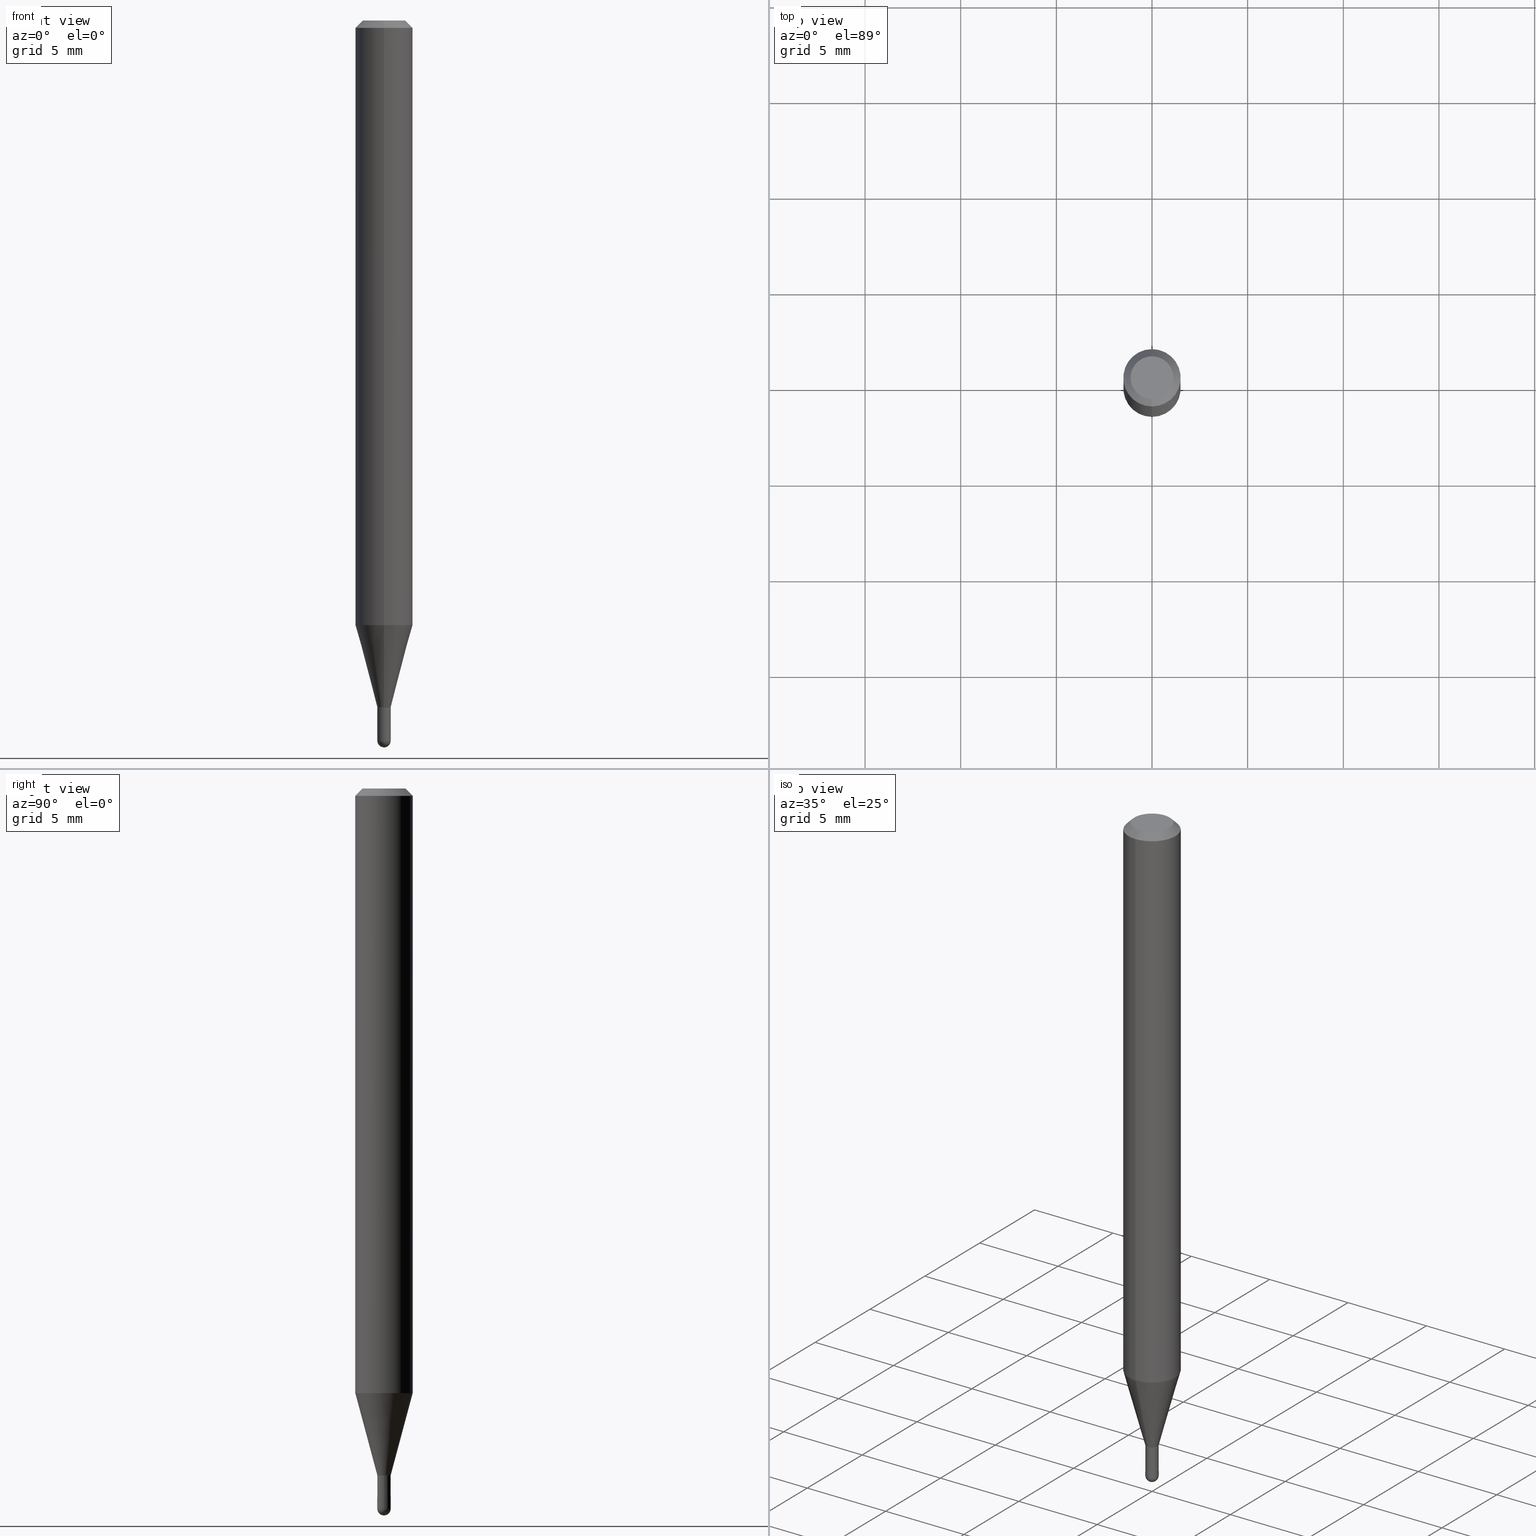
[diagram: canonical four-view strip — front | top / right | iso, engineering-drawing reading convention]
A machine part, canonical four-view strip (front | top / right | iso — engineering-drawing reading convention). The complete STEP part file that produces these views, byte-faithful:
ISO-10303-21;
HEADER;
FILE_DESCRIPTION (( 'STEP AP203' ),
    '1' );
FILE_NAME ('05014.STEP',
    '2024-03-08T20:46:24',
    ( '' ),
    ( '' ),
    'SwSTEP 2.0',
    'SolidWorks 2023',
    '' );
FILE_SCHEMA (( 'CONFIG_CONTROL_DESIGN' ));
ENDSEC;

DATA;
#1 = ADVANCED_FACE ( 'NONE', ( #237 ), #261, .T. ) ;
#2 = DIRECTION ( 'NONE',  ( 2.445466752382438032E-29, -3.491484280005505170E-15, -1.000000000000000000 ) ) ;
#3 = AXIS2_PLACEMENT_3D ( 'NONE', #355, #470, #110 ) ;
#4 = VERTEX_POINT ( 'NONE', #184 ) ;
#5 = DIRECTION ( 'NONE',  ( -2.445466752382438032E-29, 3.491484280005505170E-15, 1.000000000000000000 ) ) ;
#6 = DIRECTION ( 'NONE',  ( -6.982962677686265133E-15, -1.000000000000000000, 0.000000000000000000 ) ) ;
#7 = EDGE_CURVE ( 'NONE', #57, #500, #402, .T. ) ;
#8 = ORIENTED_EDGE ( 'NONE', *, *, #499, .T. ) ;
#9 =( NAMED_UNIT ( * ) PLANE_ANGLE_UNIT ( ) SI_UNIT ( $, .RADIAN. ) );
#10 = SECURITY_CLASSIFICATION_LEVEL ( 'unclassified' ) ;
#11 = DIRECTION ( 'NONE',  ( -6.982962677686265922E-15, -1.000000000000000000, 3.505890868245046092E-15 ) ) ;
#12 = CC_DESIGN_PERSON_AND_ORGANIZATION_ASSIGNMENT ( #274, #201, ( #183 ) ) ;
#13 = APPROVAL_ROLE ( '' ) ;
#14 = SPHERICAL_SURFACE ( 'NONE', #171, 0.01379999999999999977 ) ;
#15 = ORIENTED_EDGE ( 'NONE', *, *, #7, .F. ) ;
#16 = CARTESIAN_POINT ( 'NONE',  ( 1.968650324445262626E-45, -2.810715645155272139E-31, -8.050202778374932957E-17 ) ) ;
#17 = CARTESIAN_POINT ( 'NONE',  ( 0.000000000000000000, 0.000000000000000000, 0.000000000000000000 ) ) ;
#18 = EDGE_CURVE ( 'NONE', #227, #203, #228, .T. ) ;
#19 = DIRECTION ( 'NONE',  ( 6.982962677686265922E-15, 1.000000000000000000, -3.505890868245046092E-15 ) ) ;
#20 = AXIS2_PLACEMENT_3D ( 'NONE', #24, #65, #74 ) ;
#21 = VECTOR ( 'NONE', #376, 39.37007874015748143 ) ;
#22 = CARTESIAN_POINT ( 'NONE',  ( 9.450218385612788188E-17, 0.01329999999999506577, -1.413400000000000212 ) ) ;
#23 = CARTESIAN_POINT ( 'NONE',  ( 0.000000000000000000, 0.000000000000000000, 0.000000000000000000 ) ) ;
#24 = CARTESIAN_POINT ( 'NONE',  ( 3.624918411408227122E-29, -5.175422788567193795E-15, -1.482299999999999729 ) ) ;
#25 = CARTESIAN_POINT ( 'NONE',  ( 3.455689067791622925E-29, -4.933816436075779894E-15, -1.413100000000000023 ) ) ;
#26 = FACE_OUTER_BOUND ( 'NONE', #464, .T. ) ;
#27 = ORIENTED_EDGE ( 'NONE', *, *, #450, .T. ) ;
#28 = CONICAL_SURFACE ( 'NONE', #338, 0.01330000000000000106, 0.7853981633974739252 ) ;
#29 = AXIS2_PLACEMENT_3D ( 'NONE', #461, #177, #295 ) ;
#30 = FACE_OUTER_BOUND ( 'NONE', #509, .T. ) ;
#31 = APPLICATION_CONTEXT ( 'configuration controlled 3d designs of mechanical parts and assemblies' ) ;
#32 = CONICAL_SURFACE ( 'NONE', #112, 0.01379999999999992344, 0.2617993877991576790 ) ;
#33 = VECTOR ( 'NONE', #249, 39.37007874015748143 ) ;
#34 = DIRECTION ( 'NONE',  ( -2.445468806185136597E-29, 3.491481338843145583E-15, 1.000000000000000000 ) ) ;
#35 = EDGE_CURVE ( 'NONE', #454, #475, #309, .T. ) ;
#36 = ORIENTED_EDGE ( 'NONE', *, *, #144, .F. ) ;
#37 = CARTESIAN_POINT ( 'NONE',  ( 3.623738281929160025E-29, -5.177112801150018502E-15, -1.482299999999999951 ) ) ;
#38 = DIRECTION ( 'NONE',  ( -6.982962677686265922E-15, -1.000000000000000000, 0.000000000000000000 ) ) ;
#39 = LINE ( 'NONE', #398, #329 ) ;
#40 = CARTESIAN_POINT ( 'NONE',  ( 0.000000000000000000, 0.000000000000000000, 0.000000000000000000 ) ) ;
#41 = AXIS2_PLACEMENT_3D ( 'NONE', #354, #198, #304 ) ;
#42 = CIRCLE ( 'NONE', #83, 0.01379999999999992344 ) ;
#43 = ORIENTED_EDGE ( 'NONE', *, *, #35, .T. ) ;
#44 = DATE_AND_TIME ( #388, #315 ) ;
#45 = EDGE_CURVE ( 'NONE', #500, #199, #465, .T. ) ;
#46 = CARTESIAN_POINT ( 'NONE',  ( 9.805489753492943367E-17, 0.01379999999999521887, -1.412900000000000045 ) ) ;
#47 = ORIENTED_EDGE ( 'NONE', *, *, #476, .F. ) ;
#48 = APPROVAL ( #324, 'UNSPECIFIED' ) ;
#49 = DIRECTION ( 'NONE',  ( -2.445466752382438032E-29, 3.491484280005505170E-15, 1.000000000000000000 ) ) ;
#50 = EDGE_LOOP ( 'NONE', ( #409, #223, #312, #109 ) ) ;
#51 = DATE_AND_TIME ( #81, #270 ) ;
#52 = CARTESIAN_POINT ( 'NONE',  ( 0.01379999999999999977, -5.031224609272972078E-15, -1.413399999999999990 ) ) ;
#53 = APPLICATION_PROTOCOL_DEFINITION ( 'international standard', 'config_control_design', 1994, #206 ) ;
#54 = AXIS2_PLACEMENT_3D ( 'NONE', #457, #137, #58 ) ;
#55 = CARTESIAN_POINT ( 'NONE',  ( 3.455689067791622925E-29, -4.933816436075779894E-15, -1.413100000000000023 ) ) ;
#56 = CARTESIAN_POINT ( 'NONE',  ( -4.051124067684085231E-16, -0.05905000000000005383, -0.01499999999999987454 ) ) ;
#57 = VERTEX_POINT ( 'NONE', #190 ) ;
#58 = DIRECTION ( 'NONE',  ( -1.000000000000000000, 6.982962677686265922E-15, -4.876176775795935793E-29 ) ) ;
#59 = VECTOR ( 'NONE', #97, 39.37007874015748143 ) ;
#60 = DIRECTION ( 'NONE',  ( -6.982962677686265922E-15, -1.000000000000000000, 0.000000000000000000 ) ) ;
#61 = EDGE_CURVE ( 'NONE', #271, #510, #307, .T. ) ;
#62 = EDGE_LOOP ( 'NONE', ( #358, #96, #210, #272 ) ) ;
#63 = DIRECTION ( 'NONE',  ( -6.982962677686265922E-15, -1.000000000000000000, 0.000000000000000000 ) ) ;
#64 = CARTESIAN_POINT ( 'NONE',  ( 1.968650324445262626E-45, -2.810715645155272139E-31, -8.050202778374932957E-17 ) ) ;
#65 = DIRECTION ( 'NONE',  ( -2.445468806185136597E-29, 3.491481338843145583E-15, 1.000000000000000000 ) ) ;
#66 = MANIFOLD_SOLID_BREP ( 'Body-Move/Copy2[2]', #189 ) ;
#67 = CARTESIAN_POINT ( 'NONE',  ( 3.456422707817337873E-29, -4.934863881359783185E-15, -1.413400000000000212 ) ) ;
#68 = CC_DESIGN_SECURITY_CLASSIFICATION ( #214, ( #191 ) ) ;
#69 = CARTESIAN_POINT ( 'NONE',  ( 3.624918411408227122E-29, -5.175422788567193795E-15, -1.482299999999999729 ) ) ;
#70 = CARTESIAN_POINT ( 'NONE',  ( -9.636488495203536860E-17, -0.01380000000000485873, -1.413100000000000023 ) ) ;
#71 = ORIENTED_EDGE ( 'NONE', *, *, #61, .T. ) ;
#72 = CIRCLE ( 'NONE', #368, 0.01380000000000019926 ) ;
#73 = ORGANIZATION ( 'UNSPECIFIED', 'UNSPECIFIED', '' ) ;
#74 = DIRECTION ( 'NONE',  ( 1.000000000000000000, -6.982962677686234367E-15, 0.000000000000000000 ) ) ;
#75 = VERTEX_POINT ( 'NONE', #115 ) ;
#76 = VERTEX_POINT ( 'NONE', #433 ) ;
#77 = CARTESIAN_POINT ( 'NONE',  ( 9.627854069552881185E-17, 0.01329999999999506577, -1.413400000000000212 ) ) ;
#78 = PERSON_AND_ORGANIZATION ( #305, #73 ) ;
#79 = LINE ( 'NONE', #240, #327 ) ;
#80 = ORIENTED_EDGE ( 'NONE', *, *, #265, .F. ) ;
#81 = CALENDAR_DATE ( 2024, 8, 3 ) ;
#82 = DIRECTION ( 'NONE',  ( 1.839019923739650802E-15, 0.2588190451025320638, 0.9659258262890650926 ) ) ;
#83 = AXIS2_PLACEMENT_3D ( 'NONE', #25, #187, #139 ) ;
#84 = EDGE_LOOP ( 'NONE', ( #456, #280, #169, #296, #263 ) ) ;
#85 = DIRECTION ( 'NONE',  ( 6.982962677686265922E-15, 1.000000000000000000, -3.505890868245046092E-15 ) ) ;
#86 = ORIENTED_EDGE ( 'NONE', *, *, #486, .F. ) ;
#87 = CALENDAR_DATE ( 2024, 8, 3 ) ;
#88 = DIRECTION ( 'NONE',  ( -2.445466752382438032E-29, 3.491484280005505170E-15, 1.000000000000000000 ) ) ;
#89 = CARTESIAN_POINT ( 'NONE',  ( 3.455199974441146854E-29, -4.933118139219779014E-15, -1.412900000000000045 ) ) ;
#90 = FACE_OUTER_BOUND ( 'NONE', #162, .T. ) ;
#91 = EDGE_CURVE ( 'NONE', #236, #199, #92, .T. ) ;
#92 = CIRCLE ( 'NONE', #129, 0.01379999999999999977 ) ;
#93 = AXIS2_PLACEMENT_3D ( 'NONE', #23, #185, #469 ) ;
#94 = ORIENTED_EDGE ( 'NONE', *, *, #195, .F. ) ;
#95 = EDGE_CURVE ( 'NONE', #4, #158, #434, .T. ) ;
#96 = ORIENTED_EDGE ( 'NONE', *, *, #311, .F. ) ;
#97 = DIRECTION ( 'NONE',  ( -2.445466752382438312E-29, 3.491484280005505565E-15, 1.000000000000000000 ) ) ;
#98 = EDGE_LOOP ( 'NONE', ( #313, #156 ) ) ;
#99 = EDGE_CURVE ( 'NONE', #75, #510, #511, .T. ) ;
#100 = PERSON_AND_ORGANIZATION ( #305, #73 ) ;
#101 = DIRECTION ( 'NONE',  ( -2.445466752382438032E-29, 3.491484280005505170E-15, 1.000000000000000000 ) ) ;
#102 = AXIS2_PLACEMENT_3D ( 'NONE', #40, #133, #128 ) ;
#103 = DIRECTION ( 'NONE',  ( 1.000000000000000000, -6.982962677686234367E-15, 0.000000000000000000 ) ) ;
#104 = CONICAL_SURFACE ( 'NONE', #173, 0.01330000000000000106, 0.7853981633974739252 ) ;
#105 = AXIS2_PLACEMENT_3D ( 'NONE', #37, #204, #361 ) ;
#106 = FACE_OUTER_BOUND ( 'NONE', #482, .T. ) ;
#107 = PRODUCT_RELATED_PRODUCT_CATEGORY ( 'detail', '', ( #349 ) ) ;
#108 = FACE_OUTER_BOUND ( 'NONE', #393, .T. ) ;
#109 = ORIENTED_EDGE ( 'NONE', *, *, #153, .F. ) ;
#110 = DIRECTION ( 'NONE',  ( -6.982962677686265922E-15, -1.000000000000000000, 4.626330217890369336E-15 ) ) ;
#111 = ADVANCED_FACE ( 'NONE', ( #30 ), #28, .T. ) ;
#112 = AXIS2_PLACEMENT_3D ( 'NONE', #161, #5, #365 ) ;
#113 = CIRCLE ( 'NONE', #352, 0.04404999999999999888 ) ;
#114 = ORIENTED_EDGE ( 'NONE', *, *, #504, .F. ) ;
#115 = CARTESIAN_POINT ( 'NONE',  ( 3.599717260347271507E-16, 0.04404999999999999888, -2.343019103179918348E-16 ) ) ;
#116 = ORIENTED_EDGE ( 'NONE', *, *, #481, .F. ) ;
#117 = DIRECTION ( 'NONE',  ( -2.445468806185136597E-29, 3.491481338843145583E-15, 1.000000000000000000 ) ) ;
#118 = ORIENTED_EDGE ( 'NONE', *, *, #351, .F. ) ;
#119 =( LENGTH_UNIT ( ) NAMED_UNIT ( * ) SI_UNIT ( $, .METRE. ) );
#120 = DIRECTION ( 'NONE',  ( -6.982962677686265922E-15, -1.000000000000000000, 0.000000000000000000 ) ) ;
#121 = FACE_OUTER_BOUND ( 'NONE', #84, .T. ) ;
#122 = ORIENTED_EDGE ( 'NONE', *, *, #404, .F. ) ;
#123 = PERSON_AND_ORGANIZATION_ROLE ( 'classification_officer' ) ;
#124 = CARTESIAN_POINT ( 'NONE',  ( 9.805489753489424308E-17, 0.01380000000000006048, -4.818248306407617745E-17 ) ) ;
#125 = ADVANCED_FACE ( 'NONE', ( #200 ), #251, .T. ) ;
#126 = ORIENTED_EDGE ( 'NONE', *, *, #476, .T. ) ;
#127 = CALENDAR_DATE ( 2024, 8, 3 ) ;
#128 = DIRECTION ( 'NONE',  ( 1.000000000000000000, -6.982962677686267499E-15, 4.876176775795936353E-29 ) ) ;
#129 = AXIS2_PLACEMENT_3D ( 'NONE', #186, #264, #503 ) ;
#130 = CIRCLE ( 'NONE', #283, 0.01379999999999999977 ) ;
#131 = EDGE_LOOP ( 'NONE', ( #344, #239 ) ) ;
#132 = COORDINATED_UNIVERSAL_TIME_OFFSET ( 5, 0, .BEHIND. ) ;
#133 = DIRECTION ( 'NONE',  ( -2.445468806185136597E-29, 3.491481338843145583E-15, 1.000000000000000000 ) ) ;
#134 = CARTESIAN_POINT ( 'NONE',  ( -0.01379999999999999977, -4.957086358909154579E-15, -1.482299999999999729 ) ) ;
#135 = DIRECTION ( 'NONE',  ( -2.445466752382438312E-29, 3.491484280005505565E-15, 1.000000000000000000 ) ) ;
#136 = DIRECTION ( 'NONE',  ( -2.445466752382438032E-29, 3.491484280005505170E-15, 1.000000000000000000 ) ) ;
#137 = DIRECTION ( 'NONE',  ( 2.438088387897960049E-29, -3.491481338843145188E-15, -1.000000000000000000 ) ) ;
#138 = CIRCLE ( 'NONE', #220, 0.05904999999999999832 ) ;
#139 = DIRECTION ( 'NONE',  ( -6.982962677686265922E-15, -1.000000000000000000, 0.000000000000000000 ) ) ;
#140 = FACE_OUTER_BOUND ( 'NONE', #131, .T. ) ;
#141 = ADVANCED_FACE ( 'NONE', ( #165 ), #175, .T. ) ;
#142 = DIRECTION ( 'NONE',  ( 2.445466752382438032E-29, -3.491484280005505170E-15, -1.000000000000000000 ) ) ;
#143 = CARTESIAN_POINT ( 'NONE',  ( 3.456425610662071813E-29, -4.934859724320901926E-15, -1.413399999999999990 ) ) ;
#144 = EDGE_CURVE ( 'NONE', #207, #475, #219, .T. ) ;
#145 = DIRECTION ( 'NONE',  ( -6.982962677686265133E-15, -1.000000000000000000, 3.491484280005504776E-15 ) ) ;
#146 = DIRECTION ( 'NONE',  ( 4.937700262164548042E-15, 0.7071067811865451302, -0.7071067811865499042 ) ) ;
#147 = AXIS2_PLACEMENT_3D ( 'NONE', #17, #148, #453 ) ;
#148 = DIRECTION ( 'NONE',  ( -2.445468806185136597E-29, 3.491481338843145583E-15, 1.000000000000000000 ) ) ;
#149 = ORIENTED_EDGE ( 'NONE', *, *, #351, .T. ) ;
#150 = ADVANCED_FACE ( 'NONE', ( #90 ), #32, .T. ) ;
#151 = AXIS2_PLACEMENT_3D ( 'NONE', #446, #2, #85 ) ;
#152 = DIRECTION ( 'NONE',  ( -2.445468806185136597E-29, 3.491481338843145583E-15, 1.000000000000000000 ) ) ;
#153 = EDGE_CURVE ( 'NONE', #158, #271, #245, .T. ) ;
#154 = CARTESIAN_POINT ( 'NONE',  ( 3.456422707817337873E-29, -4.934863881359783185E-15, -1.413400000000000212 ) ) ;
#155 = ORIENTED_EDGE ( 'NONE', *, *, #499, .F. ) ;
#156 = ORIENTED_EDGE ( 'NONE', *, *, #504, .T. ) ;
#157 = EDGE_LOOP ( 'NONE', ( #94, #8, #462, #400 ) ) ;
#158 = VERTEX_POINT ( 'NONE', #477 ) ;
#159 = CLOSED_SHELL ( 'NONE', ( #164, #231, #390, #1, #322 ) ) ;
#160 = AXIS2_PLACEMENT_3D ( 'NONE', #154, #88, #120 ) ;
#161 = CARTESIAN_POINT ( 'NONE',  ( 3.455689067791622925E-29, -4.933816436075779894E-15, -1.413100000000000023 ) ) ;
#162 = EDGE_LOOP ( 'NONE', ( #419, #490, #298, #116 ) ) ;
#163 = COORDINATED_UNIVERSAL_TIME_OFFSET ( 5, 0, .BEHIND. ) ;
#164 = ADVANCED_FACE ( 'NONE', ( #121 ), #406, .T. ) ;
#165 = FACE_OUTER_BOUND ( 'NONE', #267, .T. ) ;
#166 = PERSON_AND_ORGANIZATION_ROLE ( 'creator' ) ;
#167 = DIRECTION ( 'NONE',  ( 1.000000000000000000, -6.982962677686265922E-15, 4.883557194083112901E-29 ) ) ;
#168 = UNCERTAINTY_MEASURE_WITH_UNIT (LENGTH_MEASURE( 1.000000000000000082E-05 ), #273, 'distance_accuracy_value', 'NONE');
#169 = ORIENTED_EDGE ( 'NONE', *, *, #18, .F. ) ;
#170 = PERSON_AND_ORGANIZATION ( #305, #73 ) ;
#171 = AXIS2_PLACEMENT_3D ( 'NONE', #443, #167, #38 ) ;
#172 = CARTESIAN_POINT ( 'NONE',  ( -4.123439461173736383E-16, -0.05905000000000005383, -0.01499999999999987454 ) ) ;
#173 = AXIS2_PLACEMENT_3D ( 'NONE', #497, #381, #63 ) ;
#174 = APPROVAL_STATUS ( 'not_yet_approved' ) ;
#175 = CYLINDRICAL_SURFACE ( 'NONE', #485, 0.05904999999999999832 ) ;
#176 = EDGE_LOOP ( 'NONE', ( #47, #363, #407, #15 ) ) ;
#177 = DIRECTION ( 'NONE',  ( -2.445466752382437471E-29, 3.491484280005505565E-15, 1.000000000000000000 ) ) ;
#178 = DIRECTION ( 'NONE',  ( 2.445466752382437471E-29, -3.491484280005505565E-15, -1.000000000000000000 ) ) ;
#179 =( GEOMETRIC_REPRESENTATION_CONTEXT ( 3 ) GLOBAL_UNCERTAINTY_ASSIGNED_CONTEXT ( ( #168 ) ) GLOBAL_UNIT_ASSIGNED_CONTEXT ( ( #273, #9, #487 ) ) REPRESENTATION_CONTEXT ( 'NONE', 'WORKASPACE' ) );
#180 = ORIENTED_EDGE ( 'NONE', *, *, #255, .F. ) ;
#181 = APPROVAL_PERSON_ORGANIZATION ( #170, #241, #287 ) ;
#182 = DIRECTION ( 'NONE',  ( 5.024295867788190974E-15, 0.7071067811865681119, 0.7071067811865270336 ) ) ;
#183 = PRODUCT_DEFINITION ( 'UNKNOWN', '', #191, #432 ) ;
#184 = CARTESIAN_POINT ( 'NONE',  ( 4.195754854663694204E-16, 0.05904999999999564764, -1.244224700957513807 ) ) ;
#185 = DIRECTION ( 'NONE',  ( -2.445466752382438032E-29, 3.491484280005505170E-15, 1.000000000000000000 ) ) ;
#186 = CARTESIAN_POINT ( 'NONE',  ( 3.623738281929160025E-29, -5.177112801150018502E-15, -1.482299999999999951 ) ) ;
#187 = DIRECTION ( 'NONE',  ( -2.445466752382438032E-29, 3.491484280005505170E-15, 1.000000000000000000 ) ) ;
#188 = CYLINDRICAL_SURFACE ( 'NONE', #147, 0.01379999999999999977 ) ;
#189 = CLOSED_SHELL ( 'NONE', ( #299, #491, #257, #125, #150, #372, #141, #339, #387, #281, #111, #420 ) ) ;
#190 = CARTESIAN_POINT ( 'NONE',  ( 9.805489753493006229E-17, 0.01379999999999482335, -1.482299999999999729 ) ) ;
#191 = PRODUCT_DEFINITION_FORMATION_WITH_SPECIFIED_SOURCE ( 'ANY', '', #349, .NOT_KNOWN. ) ;
#192 = PRODUCT_DEFINITION_SHAPE ( 'NONE', 'NONE',  #183 ) ;
#193 = ORIENTED_EDGE ( 'NONE', *, *, #153, .T. ) ;
#194 = CC_DESIGN_PERSON_AND_ORGANIZATION_ASSIGNMENT ( #100, #422, ( #349 ) ) ;
#195 = EDGE_CURVE ( 'NONE', #242, #4, #79, .T. ) ;
#196 = VECTOR ( 'NONE', #182, 39.37007874015748143 ) ;
#197 = CC_DESIGN_DATE_AND_TIME_ASSIGNMENT ( #364, #243, ( #214 ) ) ;
#198 = DIRECTION ( 'NONE',  ( -2.445466752382438032E-29, 3.491484280005505170E-15, 1.000000000000000000 ) ) ;
#199 = VERTEX_POINT ( 'NONE', #202 ) ;
#200 = FACE_OUTER_BOUND ( 'NONE', #50, .T. ) ;
#201 = PERSON_AND_ORGANIZATION_ROLE ( 'creator' ) ;
#202 = CARTESIAN_POINT ( 'NONE',  ( -9.636488495203423462E-17, -0.01380000000000517792, -1.482299999999999729 ) ) ;
#203 = VERTEX_POINT ( 'NONE', #410 ) ;
#204 = DIRECTION ( 'NONE',  ( 1.000000000000000000, -7.105427357601001070E-15, 4.926315508542082329E-29 ) ) ;
#205 = CC_DESIGN_PERSON_AND_ORGANIZATION_ASSIGNMENT ( #367, #166, ( #191 ) ) ;
#206 = APPLICATION_CONTEXT ( 'configuration controlled 3d designs of mechanical parts and assemblies' ) ;
#207 = VERTEX_POINT ( 'NONE', #46 ) ;
#208 = APPROVAL_DATE_TIME ( #319, #48 ) ;
#209 = DIRECTION ( 'NONE',  ( -2.445466752382438032E-29, 3.491484280005505170E-15, 1.000000000000000000 ) ) ;
#210 = ORIENTED_EDGE ( 'NONE', *, *, #99, .T. ) ;
#211 = DATE_TIME_ROLE ( 'creation_date' ) ;
#212 = VECTOR ( 'NONE', #135, 39.37007874015748143 ) ;
#213 = DIRECTION ( 'NONE',  ( -6.982962677686265133E-15, -1.000000000000000000, 0.000000000000000000 ) ) ;
#214 = SECURITY_CLASSIFICATION ( '', '', #10 ) ;
#215 = DIRECTION ( 'NONE',  ( 1.000000000000000000, -6.982962677686234367E-15, 0.000000000000000000 ) ) ;
#216 = DIRECTION ( 'NONE',  ( -2.445466752382438032E-29, 3.491484280005505170E-15, 1.000000000000000000 ) ) ;
#217 = ORIENTED_EDGE ( 'NONE', *, *, #293, .T. ) ;
#218 = CARTESIAN_POINT ( 'NONE',  ( 4.195754854663390985E-16, 0.05904999999999999832, -2.061721467343250858E-16 ) ) ;
#219 = CIRCLE ( 'NONE', #259, 0.01380000000000019926 ) ;
#220 = AXIS2_PLACEMENT_3D ( 'NONE', #408, #49, #11 ) ;
#221 = ADVANCED_BREP_SHAPE_REPRESENTATION ( '05014', ( #412, #66, #466 ), #179 ) ;
#222 = LINE ( 'NONE', #22, #196 ) ;
#223 = ORIENTED_EDGE ( 'NONE', *, *, #306, .T. ) ;
#224 = CARTESIAN_POINT ( 'NONE',  ( 3.624918411408227122E-29, -5.175422788567193795E-15, -1.482299999999999729 ) ) ;
#225 = PLANE ( 'NONE',  #29 ) ;
#226 = EDGE_CURVE ( 'NONE', #506, #227, #357, .T. ) ;
#227 = VERTEX_POINT ( 'NONE', #52 ) ;
#228 = CIRCLE ( 'NONE', #244, 0.01379999999999999977 ) ;
#229 = DIRECTION ( 'NONE',  ( -2.445466752382438032E-29, 3.491484280005505170E-15, 1.000000000000000000 ) ) ;
#230 = CIRCLE ( 'NONE', #505, 0.05904999999999999832 ) ;
#231 = ADVANCED_FACE ( 'NONE', ( #370 ), #14, .T. ) ;
#232 = CIRCLE ( 'NONE', #300, 0.01379999999999992344 ) ;
#233 = CONICAL_SURFACE ( 'NONE', #328, 0.05904999999999999832, 0.7853981633974483900 ) ;
#234 = EDGE_LOOP ( 'NONE', ( #114, #445, #71, #268 ) ) ;
#235 = CARTESIAN_POINT ( 'NONE',  ( 0.000000000000000000, 0.000000000000000000, 0.000000000000000000 ) ) ;
#236 = VERTEX_POINT ( 'NONE', #279 ) ;
#237 = FACE_OUTER_BOUND ( 'NONE', #176, .T. ) ;
#238 = EDGE_CURVE ( 'NONE', #436, #242, #232, .T. ) ;
#239 = ORIENTED_EDGE ( 'NONE', *, *, #335, .T. ) ;
#240 = CARTESIAN_POINT ( 'NONE',  ( 9.805489753492783129E-17, 0.01379999999999498989, -1.413100000000000023 ) ) ;
#241 = APPROVAL ( #174, 'UNSPECIFIED' ) ;
#242 = VERTEX_POINT ( 'NONE', #493 ) ;
#243 = DATE_TIME_ROLE ( 'classification_date' ) ;
#244 = AXIS2_PLACEMENT_3D ( 'NONE', #143, #34, #103 ) ;
#245 = LINE ( 'NONE', #489, #33 ) ;
#246 = EDGE_CURVE ( 'NONE', #475, #207, #72, .T. ) ;
#247 = DIRECTION ( 'NONE',  ( -2.445466752382438032E-29, 3.491484280005505170E-15, 1.000000000000000000 ) ) ;
#248 = APPROVAL_DATE_TIME ( #448, #241 ) ;
#249 = DIRECTION ( 'NONE',  ( -2.445466752382438312E-29, 3.491484280005505565E-15, 1.000000000000000000 ) ) ;
#250 = AXIS2_PLACEMENT_3D ( 'NONE', #275, #317, #401 ) ;
#251 = CYLINDRICAL_SURFACE ( 'NONE', #250, 0.05904999999999999832 ) ;
#252 = CONICAL_SURFACE ( 'NONE', #151, 0.05904999999999999832, 0.7853981633974483900 ) ;
#253 = DIRECTION ( 'NONE',  ( -6.982962677686265922E-15, -1.000000000000000000, 4.626330217890369336E-15 ) ) ;
#254 = LINE ( 'NONE', #297, #496 ) ;
#255 = EDGE_CURVE ( 'NONE', #242, #207, #284, .T. ) ;
#256 = CARTESIAN_POINT ( 'NONE',  ( 3.668200128573676386E-31, -5.237226420008286401E-17, -0.01500000000000008098 ) ) ;
#257 = ADVANCED_FACE ( 'NONE', ( #326 ), #252, .T. ) ;
#258 = LINE ( 'NONE', #218, #59 ) ;
#259 = AXIS2_PLACEMENT_3D ( 'NONE', #89, #209, #213 ) ;
#260 = VECTOR ( 'NONE', #421, 39.37007874015748143 ) ;
#261 = SPHERICAL_SURFACE ( 'NONE', #444, 0.01379999999999999977 ) ;
#262 = CYLINDRICAL_SURFACE ( 'NONE', #431, 0.01380000000000006048 ) ;
#263 = ORIENTED_EDGE ( 'NONE', *, *, #440, .T. ) ;
#264 = DIRECTION ( 'NONE',  ( -1.000000000000000000, 6.982962677686265922E-15, -4.883557194083112340E-29 ) ) ;
#265 = EDGE_CURVE ( 'NONE', #510, #271, #138, .T. ) ;
#266 = CONICAL_SURFACE ( 'NONE', #392, 0.01379999999999992344, 0.2617993877991576790 ) ;
#267 = EDGE_LOOP ( 'NONE', ( #323, #269, #193, #80 ) ) ;
#268 = ORIENTED_EDGE ( 'NONE', *, *, #99, .F. ) ;
#269 = ORIENTED_EDGE ( 'NONE', *, *, #95, .T. ) ;
#270 = LOCAL_TIME ( 15, 46, 24.00000000000000000, #437 ) ;
#271 = VERTEX_POINT ( 'NONE', #172 ) ;
#272 = ORIENTED_EDGE ( 'NONE', *, *, #265, .T. ) ;
#273 =( CONVERSION_BASED_UNIT ( 'INCH', #442 ) LENGTH_UNIT ( ) NAMED_UNIT ( #411 ) );
#274 = PERSON_AND_ORGANIZATION ( #305, #73 ) ;
#275 = CARTESIAN_POINT ( 'NONE',  ( 0.000000000000000000, 0.000000000000000000, 0.000000000000000000 ) ) ;
#276 = ORIENTED_EDGE ( 'NONE', *, *, #144, .T. ) ;
#277 = CALENDAR_DATE ( 2024, 8, 3 ) ;
#278 = DIRECTION ( 'NONE',  ( -2.445468806185136877E-29, 3.491481338843145188E-15, 1.000000000000000000 ) ) ;
#279 = CARTESIAN_POINT ( 'NONE',  ( 3.656895686714981183E-29, -5.226140249917465537E-15, -1.496099999999999985 ) ) ;
#280 = ORIENTED_EDGE ( 'NONE', *, *, #467, .T. ) ;
#281 = ADVANCED_FACE ( 'NONE', ( #330 ), #225, .F. ) ;
#282 = SHAPE_DEFINITION_REPRESENTATION ( #192, #221 ) ;
#283 = AXIS2_PLACEMENT_3D ( 'NONE', #69, #152, #508 ) ;
#284 = LINE ( 'NONE', #124, #212 ) ;
#285 = CC_DESIGN_APPROVAL ( #48, ( #191 ) ) ;
#286 = ORIENTED_EDGE ( 'NONE', *, *, #246, .F. ) ;
#287 = APPROVAL_ROLE ( '' ) ;
#288 = CC_DESIGN_DATE_AND_TIME_ASSIGNMENT ( #51, #211, ( #183 ) ) ;
#289 = DIRECTION ( 'NONE',  ( -6.982962677686265133E-15, -1.000000000000000000, 3.491484280005504776E-15 ) ) ;
#290 = DIRECTION ( 'NONE',  ( -6.982962677686265922E-15, -1.000000000000000000, 3.491484280005505170E-15 ) ) ;
#291 = DIRECTION ( 'NONE',  ( -6.982962677686265133E-15, -1.000000000000000000, 3.491484280005504776E-15 ) ) ;
#292 = APPROVAL_PERSON_ORGANIZATION ( #78, #48, #13 ) ;
#293 = EDGE_CURVE ( 'NONE', #454, #512, #488, .T. ) ;
#294 = CARTESIAN_POINT ( 'NONE',  ( 3.042710138684580835E-29, -4.344190984187709840E-15, -1.244224700957513585 ) ) ;
#295 = DIRECTION ( 'NONE',  ( -6.982962677686265922E-15, -1.000000000000000000, 3.491484280005505565E-15 ) ) ;
#296 = ORIENTED_EDGE ( 'NONE', *, *, #226, .F. ) ;
#297 = CARTESIAN_POINT ( 'NONE',  ( -9.636488495207087967E-17, -0.01380000000000006048, 4.818248306407617745E-17 ) ) ;
#298 = ORIENTED_EDGE ( 'NONE', *, *, #507, .F. ) ;
#299 = ADVANCED_FACE ( 'NONE', ( #108 ), #262, .F. ) ;
#300 = AXIS2_PLACEMENT_3D ( 'NONE', #484, #247, #333 ) ;
#301 = AXIS2_PLACEMENT_3D ( 'NONE', #224, #337, #334 ) ;
#302 = ORIENTED_EDGE ( 'NONE', *, *, #440, .F. ) ;
#303 = DIRECTION ( 'NONE',  ( -2.445468806185136597E-29, 3.491481338843145583E-15, 1.000000000000000000 ) ) ;
#304 = DIRECTION ( 'NONE',  ( -6.982962677686265922E-15, -1.000000000000000000, 3.505890868245046092E-15 ) ) ;
#305 = PERSON ( 'UNSPECIFIED', 'UNSPECIFIED', 'UNSPECIFIED', ('UNSPECIFIED'), ('UNSPECIFIED'), ('UNSPECIFIED') ) ;
#306 = EDGE_CURVE ( 'NONE', #4, #510, #258, .T. ) ;
#307 = CIRCLE ( 'NONE', #41, 0.05904999999999999832 ) ;
#308 = APPROVAL_PERSON_ORGANIZATION ( #427, #316, #394 ) ;
#309 = LINE ( 'NONE', #380, #377 ) ;
#310 = ORIENTED_EDGE ( 'NONE', *, *, #450, .F. ) ;
#311 = EDGE_CURVE ( 'NONE', #75, #76, #113, .T. ) ;
#312 = ORIENTED_EDGE ( 'NONE', *, *, #61, .F. ) ;
#313 = ORIENTED_EDGE ( 'NONE', *, *, #311, .T. ) ;
#314 = APPROVAL_DATE_TIME ( #44, #316 ) ;
#315 = LOCAL_TIME ( 15, 46, 24.00000000000000000, #384 ) ;
#316 = APPROVAL ( #350, 'UNSPECIFIED' ) ;
#317 = DIRECTION ( 'NONE',  ( -2.445466752382438032E-29, 3.491484280005505170E-15, 1.000000000000000000 ) ) ;
#318 = ORIENTED_EDGE ( 'NONE', *, *, #35, .F. ) ;
#319 = DATE_AND_TIME ( #87, #474 ) ;
#320 = CARTESIAN_POINT ( 'NONE',  ( -9.287340361319278055E-17, -0.01330000000000493461, -1.413400000000000212 ) ) ;
#321 = DIRECTION ( 'NONE',  ( -2.445466752382438032E-29, 3.491484280005505170E-15, 1.000000000000000000 ) ) ;
#322 = ADVANCED_FACE ( 'NONE', ( #26 ), #188, .T. ) ;
#323 = ORIENTED_EDGE ( 'NONE', *, *, #306, .F. ) ;
#324 = APPROVAL_STATUS ( 'not_yet_approved' ) ;
#325 = LINE ( 'NONE', #374, #21 ) ;
#326 = FACE_OUTER_BOUND ( 'NONE', #234, .T. ) ;
#327 = VECTOR ( 'NONE', #82, 39.37007874015748854 ) ;
#328 = AXIS2_PLACEMENT_3D ( 'NONE', #256, #142, #19 ) ;
#329 = VECTOR ( 'NONE', #278, 39.37007874015748143 ) ;
#330 = FACE_OUTER_BOUND ( 'NONE', #331, .T. ) ;
#331 = EDGE_LOOP ( 'NONE', ( #366, #310 ) ) ;
#332 = COORDINATED_UNIVERSAL_TIME_OFFSET ( 5, 0, .BEHIND. ) ;
#333 = DIRECTION ( 'NONE',  ( -6.982962677686265922E-15, -1.000000000000000000, 0.000000000000000000 ) ) ;
#334 = DIRECTION ( 'NONE',  ( 1.000000000000000000, -6.982962677686234367E-15, 0.000000000000000000 ) ) ;
#335 = EDGE_CURVE ( 'NONE', #203, #227, #403, .T. ) ;
#336 = CARTESIAN_POINT ( 'NONE',  ( 3.075995059520799729E-16, 0.04404999999999999888, -1.940508964261171454E-16 ) ) ;
#337 = DIRECTION ( 'NONE',  ( -2.445468806185136597E-29, 3.491481338843145583E-15, 1.000000000000000000 ) ) ;
#338 = AXIS2_PLACEMENT_3D ( 'NONE', #67, #229, #451 ) ;
#339 = ADVANCED_FACE ( 'NONE', ( #501 ), #233, .T. ) ;
#340 = CARTESIAN_POINT ( 'NONE',  ( 3.456425610662071813E-29, -4.934859724320901926E-15, -1.413399999999999990 ) ) ;
#341 = CIRCLE ( 'NONE', #460, 0.04404999999999999888 ) ;
#342 = LOCAL_TIME ( 15, 46, 24.00000000000000000, #132 ) ;
#343 = CARTESIAN_POINT ( 'NONE',  ( 3.456422707817337873E-29, -4.934863881359783185E-15, -1.413400000000000212 ) ) ;
#344 = ORIENTED_EDGE ( 'NONE', *, *, #18, .T. ) ;
#345 = DIRECTION ( 'NONE',  ( -6.982962677686265922E-15, -1.000000000000000000, 0.000000000000000000 ) ) ;
#346 = DIRECTION ( 'NONE',  ( 1.000000000000000000, -6.982962677686265922E-15, 4.883557194083112901E-29 ) ) ;
#347 = FACE_OUTER_BOUND ( 'NONE', #157, .T. ) ;
#348 = DIRECTION ( 'NONE',  ( -4.937700262164674260E-15, -0.7071067811865632269, 0.7071067811865319186 ) ) ;
#349 = PRODUCT ( '05014', '05014', '', ( #447 ) ) ;
#350 = APPROVAL_STATUS ( 'not_yet_approved' ) ;
#351 = EDGE_CURVE ( 'NONE', #436, #475, #254, .T. ) ;
#352 = AXIS2_PLACEMENT_3D ( 'NONE', #64, #382, #291 ) ;
#353 = LOCAL_TIME ( 15, 46, 24.00000000000000000, #332 ) ;
#354 = CARTESIAN_POINT ( 'NONE',  ( 3.668200128573676386E-31, -5.237226420008286401E-17, -0.01500000000000008098 ) ) ;
#355 = CARTESIAN_POINT ( 'NONE',  ( 3.042710138684580835E-29, -4.344190984187709840E-15, -1.244224700957513585 ) ) ;
#356 = ORIENTED_EDGE ( 'NONE', *, *, #91, .F. ) ;
#357 = LINE ( 'NONE', #438, #391 ) ;
#358 = ORIENTED_EDGE ( 'NONE', *, *, #389, .F. ) ;
#359 = CIRCLE ( 'NONE', #105, 0.01379999999999999977 ) ;
#360 = CARTESIAN_POINT ( 'NONE',  ( 0.000000000000000000, 0.000000000000000000, 0.000000000000000000 ) ) ;
#361 = DIRECTION ( 'NONE',  ( 7.105427357601001070E-15, 1.000000000000000000, 0.000000000000000000 ) ) ;
#362 = CARTESIAN_POINT ( 'NONE',  ( 3.455199974441146854E-29, -4.933118139219779014E-15, -1.412900000000000045 ) ) ;
#363 = ORIENTED_EDGE ( 'NONE', *, *, #91, .T. ) ;
#364 = DATE_AND_TIME ( #277, #342 ) ;
#365 = DIRECTION ( 'NONE',  ( -6.982962677686265922E-15, -1.000000000000000000, 0.000000000000000000 ) ) ;
#366 = ORIENTED_EDGE ( 'NONE', *, *, #293, .F. ) ;
#367 = PERSON_AND_ORGANIZATION ( #305, #73 ) ;
#368 = AXIS2_PLACEMENT_3D ( 'NONE', #362, #321, #6 ) ;
#369 = CC_DESIGN_APPROVAL ( #316, ( #183 ) ) ;
#370 = FACE_OUTER_BOUND ( 'NONE', #426, .T. ) ;
#371 = ORIENTED_EDGE ( 'NONE', *, *, #486, .T. ) ;
#372 = ADVANCED_FACE ( 'NONE', ( #347 ), #266, .T. ) ;
#373 = PLANE ( 'NONE',  #413 ) ;
#374 = CARTESIAN_POINT ( 'NONE',  ( -9.636488495203536860E-17, -0.01380000000000485873, -1.413100000000000023 ) ) ;
#375 = LINE ( 'NONE', #56, #260 ) ;
#376 = DIRECTION ( 'NONE',  ( -1.807323732225380232E-15, -0.2588190451025253469, 0.9659258262890670910 ) ) ;
#377 = VECTOR ( 'NONE', #348, 39.37007874015748143 ) ;
#378 = CIRCLE ( 'NONE', #301, 0.01379999999999999977 ) ;
#379 = CYLINDRICAL_SURFACE ( 'NONE', #93, 0.01380000000000006048 ) ;
#380 = CARTESIAN_POINT ( 'NONE',  ( -9.287340361319278055E-17, -0.01330000000000493461, -1.413400000000000212 ) ) ;
#381 = DIRECTION ( 'NONE',  ( -2.445466752382438032E-29, 3.491484280005505170E-15, 1.000000000000000000 ) ) ;
#382 = DIRECTION ( 'NONE',  ( -2.445466752382438032E-29, 3.491484280005505170E-15, 1.000000000000000000 ) ) ;
#383 = EDGE_LOOP ( 'NONE', ( #180, #478, #149, #468 ) ) ;
#384 = COORDINATED_UNIVERSAL_TIME_OFFSET ( 5, 0, .BEHIND. ) ;
#385 = CIRCLE ( 'NONE', #160, 0.01330000000000000106 ) ;
#386 = ORIENTED_EDGE ( 'NONE', *, *, #226, .T. ) ;
#387 = ADVANCED_FACE ( 'NONE', ( #498 ), #373, .F. ) ;
#388 = CALENDAR_DATE ( 2024, 8, 3 ) ;
#389 = EDGE_CURVE ( 'NONE', #76, #271, #375, .T. ) ;
#390 = ADVANCED_FACE ( 'NONE', ( #140 ), #495, .F. ) ;
#391 = VECTOR ( 'NONE', #480, 39.37007874015748143 ) ;
#392 = AXIS2_PLACEMENT_3D ( 'NONE', #55, #216, #60 ) ;
#393 = EDGE_LOOP ( 'NONE', ( #155, #494, #276, #118 ) ) ;
#394 = APPROVAL_ROLE ( '' ) ;
#395 = DIRECTION ( 'NONE',  ( 1.000000000000000000, 0.000000000000000000, 0.000000000000000000 ) ) ;
#396 = CC_DESIGN_PERSON_AND_ORGANIZATION_ASSIGNMENT ( #479, #397, ( #191 ) ) ;
#397 = PERSON_AND_ORGANIZATION_ROLE ( 'design_supplier' ) ;
#398 = CARTESIAN_POINT ( 'NONE',  ( -0.01379999999999999977, 9.805489753489382399E-17, -6.788130424551770621E-31 ) ) ;
#399 = DIRECTION ( 'NONE',  ( -6.982962677686265922E-15, -1.000000000000000000, 0.000000000000000000 ) ) ;
#400 = ORIENTED_EDGE ( 'NONE', *, *, #95, .F. ) ;
#401 = DIRECTION ( 'NONE',  ( -6.982962677686265922E-15, -1.000000000000000000, 3.491484280005505170E-15 ) ) ;
#402 = CIRCLE ( 'NONE', #473, 0.01379999999999999977 ) ;
#403 = CIRCLE ( 'NONE', #452, 0.01379999999999999977 ) ;
#404 = EDGE_CURVE ( 'NONE', #512, #207, #222, .T. ) ;
#405 = CARTESIAN_POINT ( 'NONE',  ( -9.636488495203762425E-17, -0.01380000000000517792, -1.412900000000000045 ) ) ;
#406 = CYLINDRICAL_SURFACE ( 'NONE', #102, 0.01379999999999999977 ) ;
#407 = ORIENTED_EDGE ( 'NONE', *, *, #45, .F. ) ;
#408 = CARTESIAN_POINT ( 'NONE',  ( 3.668200128573676386E-31, -5.237226420008286401E-17, -0.01500000000000008098 ) ) ;
#409 = ORIENTED_EDGE ( 'NONE', *, *, #507, .T. ) ;
#410 = CARTESIAN_POINT ( 'NONE',  ( -0.01379999999999999977, -4.957086358909154579E-15, -1.413399999999999990 ) ) ;
#411 = DIMENSIONAL_EXPONENTS ( 1.000000000000000000, 0.000000000000000000, 0.000000000000000000, 0.000000000000000000, 0.000000000000000000, 0.000000000000000000, 0.000000000000000000 ) ;
#412 = MANIFOLD_SOLID_BREP ( 'Body-Move/Copy2[1]', #159 ) ;
#413 = AXIS2_PLACEMENT_3D ( 'NONE', #336, #178, #418 ) ;
#414 = CARTESIAN_POINT ( 'NONE',  ( 0.01379999999999999977, -5.151506141396118013E-15, -1.482299999999999729 ) ) ;
#415 = CC_DESIGN_PERSON_AND_ORGANIZATION_ASSIGNMENT ( #483, #123, ( #214 ) ) ;
#416 = ORIENTED_EDGE ( 'NONE', *, *, #467, .F. ) ;
#417 = CARTESIAN_POINT ( 'NONE',  ( 4.195754854663697655E-16, 0.05904999999999994975, -0.01500000000000028741 ) ) ;
#418 = DIRECTION ( 'NONE',  ( 6.982962677686265922E-15, 1.000000000000000000, -3.491484280005505565E-15 ) ) ;
#419 = ORIENTED_EDGE ( 'NONE', *, *, #238, .T. ) ;
#420 = ADVANCED_FACE ( 'NONE', ( #424 ), #379, .F. ) ;
#421 = DIRECTION ( 'NONE',  ( -4.851104656540964275E-15, -0.7071067811865500152, -0.7071067811865450192 ) ) ;
#422 = PERSON_AND_ORGANIZATION_ROLE ( 'design_owner' ) ;
#423 = VECTOR ( 'NONE', #146, 39.37007874015748143 ) ;
#424 = FACE_OUTER_BOUND ( 'NONE', #383, .T. ) ;
#425 = AXIS2_PLACEMENT_3D ( 'NONE', #343, #101, #345 ) ;
#426 = EDGE_LOOP ( 'NONE', ( #356, #126, #302, #86 ) ) ;
#427 = PERSON_AND_ORGANIZATION ( #305, #73 ) ;
#428 = CARTESIAN_POINT ( 'NONE',  ( 0.000000000000000000, 0.000000000000000000, 0.000000000000000000 ) ) ;
#429 = ORIENTED_EDGE ( 'NONE', *, *, #404, .T. ) ;
#430 = CARTESIAN_POINT ( 'NONE',  ( 4.123439461173743285E-16, 0.05904999999999994975, -0.01500000000000028741 ) ) ;
#431 = AXIS2_PLACEMENT_3D ( 'NONE', #428, #455, #145 ) ;
#432 = DESIGN_CONTEXT ( 'detailed design', #31, 'design' ) ;
#433 = CARTESIAN_POINT ( 'NONE',  ( -3.536586717851222218E-16, -0.04404999999999999888, 7.329785475049316338E-17 ) ) ;
#434 = CIRCLE ( 'NONE', #3, 0.05904999999999999832 ) ;
#435 = CC_DESIGN_APPROVAL ( #241, ( #214 ) ) ;
#436 = VERTEX_POINT ( 'NONE', #70 ) ;
#437 = COORDINATED_UNIVERSAL_TIME_OFFSET ( 5, 0, .BEHIND. ) ;
#438 = CARTESIAN_POINT ( 'NONE',  ( 0.01379999999999999977, -9.636488495207048524E-17, 6.729123950598392144E-31 ) ) ;
#439 = DIRECTION ( 'NONE',  ( 0.000000000000000000, 0.000000000000000000, 1.000000000000000000 ) ) ;
#440 = EDGE_CURVE ( 'NONE', #506, #57, #130, .T. ) ;
#441 = ORIENTED_EDGE ( 'NONE', *, *, #45, .T. ) ;
#442 = LENGTH_MEASURE_WITH_UNIT ( LENGTH_MEASURE( 0.02539999999999999897 ), #119 );
#443 = CARTESIAN_POINT ( 'NONE',  ( 3.623738281929160025E-29, -5.177112801150018502E-15, -1.482299999999999951 ) ) ;
#444 = AXIS2_PLACEMENT_3D ( 'NONE', #458, #346, #399 ) ;
#445 = ORIENTED_EDGE ( 'NONE', *, *, #389, .T. ) ;
#446 = CARTESIAN_POINT ( 'NONE',  ( 3.668200128573676386E-31, -5.237226420008286401E-17, -0.01500000000000008098 ) ) ;
#447 = MECHANICAL_CONTEXT ( 'NONE', #206, 'mechanical' ) ;
#448 = DATE_AND_TIME ( #127, #353 ) ;
#449 = DIRECTION ( 'NONE',  ( -2.445466752382438032E-29, 3.491484280005505170E-15, 1.000000000000000000 ) ) ;
#450 = EDGE_CURVE ( 'NONE', #512, #454, #385, .T. ) ;
#451 = DIRECTION ( 'NONE',  ( -6.982962677686265922E-15, -1.000000000000000000, 0.000000000000000000 ) ) ;
#452 = AXIS2_PLACEMENT_3D ( 'NONE', #340, #303, #215 ) ;
#453 = DIRECTION ( 'NONE',  ( 1.000000000000000000, -6.982962677686267499E-15, 4.876176775795936353E-29 ) ) ;
#454 = VERTEX_POINT ( 'NONE', #320 ) ;
#455 = DIRECTION ( 'NONE',  ( -2.445466752382438032E-29, 3.491484280005505170E-15, 1.000000000000000000 ) ) ;
#456 = ORIENTED_EDGE ( 'NONE', *, *, #7, .T. ) ;
#457 = CARTESIAN_POINT ( 'NONE',  ( 9.636488495210503488E-17, 0.01379999999999506621, -1.413399999999999990 ) ) ;
#458 = CARTESIAN_POINT ( 'NONE',  ( 3.623738281929160025E-29, -5.177112801150018502E-15, -1.482299999999999951 ) ) ;
#459 = APPLICATION_PROTOCOL_DEFINITION ( 'international standard', 'config_control_design', 1994, #31 ) ;
#460 = AXIS2_PLACEMENT_3D ( 'NONE', #16, #492, #289 ) ;
#461 = CARTESIAN_POINT ( 'NONE',  ( 3.456422707817337873E-29, -4.934863881359783185E-15, -1.413400000000000212 ) ) ;
#462 = ORIENTED_EDGE ( 'NONE', *, *, #481, .T. ) ;
#463 = DIRECTION ( 'NONE',  ( -2.445466752382438312E-29, 3.491484280005505565E-15, 1.000000000000000000 ) ) ;
#464 = EDGE_LOOP ( 'NONE', ( #416, #441, #371, #386, #471 ) ) ;
#465 = CIRCLE ( 'NONE', #20, 0.01379999999999999977 ) ;
#466 = AXIS2_PLACEMENT_3D ( 'NONE', #235, #439, #395 ) ;
#467 = EDGE_CURVE ( 'NONE', #500, #203, #39, .T. ) ;
#468 = ORIENTED_EDGE ( 'NONE', *, *, #246, .T. ) ;
#469 = DIRECTION ( 'NONE',  ( -6.982962677686265133E-15, -1.000000000000000000, 3.491484280005504776E-15 ) ) ;
#470 = DIRECTION ( 'NONE',  ( -2.445466752382438032E-29, 3.491484280005505170E-15, 1.000000000000000000 ) ) ;
#471 = ORIENTED_EDGE ( 'NONE', *, *, #335, .F. ) ;
#472 = CARTESIAN_POINT ( 'NONE',  ( 3.624918411408227122E-29, -5.175422788567193795E-15, -1.482299999999999729 ) ) ;
#473 = AXIS2_PLACEMENT_3D ( 'NONE', #472, #117, #502 ) ;
#474 = LOCAL_TIME ( 15, 46, 24.00000000000000000, #163 ) ;
#475 = VERTEX_POINT ( 'NONE', #405 ) ;
#476 = EDGE_CURVE ( 'NONE', #236, #57, #359, .T. ) ;
#477 = CARTESIAN_POINT ( 'NONE',  ( -4.123439461173436122E-16, -0.05905000000000434207, -1.244224700957513363 ) ) ;
#478 = ORIENTED_EDGE ( 'NONE', *, *, #238, .F. ) ;
#479 = PERSON_AND_ORGANIZATION ( #305, #73 ) ;
#480 = DIRECTION ( 'NONE',  ( -2.445468806185136877E-29, 3.491481338843145188E-15, 1.000000000000000000 ) ) ;
#481 = EDGE_CURVE ( 'NONE', #436, #158, #325, .T. ) ;
#482 = EDGE_LOOP ( 'NONE', ( #217, #429, #286, #318 ) ) ;
#483 = PERSON_AND_ORGANIZATION ( #305, #73 ) ;
#484 = CARTESIAN_POINT ( 'NONE',  ( 3.455689067791622925E-29, -4.933816436075779894E-15, -1.413100000000000023 ) ) ;
#485 = AXIS2_PLACEMENT_3D ( 'NONE', #360, #449, #290 ) ;
#486 = EDGE_CURVE ( 'NONE', #199, #506, #378, .T. ) ;
#487 =( NAMED_UNIT ( * ) SI_UNIT ( $, .STERADIAN. ) SOLID_ANGLE_UNIT ( ) );
#488 = CIRCLE ( 'NONE', #425, 0.01330000000000000106 ) ;
#489 = CARTESIAN_POINT ( 'NONE',  ( -4.123439461173739834E-16, -0.05904999999999999832, 2.061721467343250858E-16 ) ) ;
#490 = ORIENTED_EDGE ( 'NONE', *, *, #195, .T. ) ;
#491 = ADVANCED_FACE ( 'NONE', ( #106 ), #104, .T. ) ;
#492 = DIRECTION ( 'NONE',  ( -2.445466752382438032E-29, 3.491484280005505170E-15, 1.000000000000000000 ) ) ;
#493 = CARTESIAN_POINT ( 'NONE',  ( 2.588151915006488292E-16, 0.01379999999999498989, -1.413100000000000023 ) ) ;
#494 = ORIENTED_EDGE ( 'NONE', *, *, #255, .T. ) ;
#495 = PLANE ( 'NONE',  #54 ) ;
#496 = VECTOR ( 'NONE', #463, 39.37007874015748143 ) ;
#497 = CARTESIAN_POINT ( 'NONE',  ( 3.456422707817337873E-29, -4.934863881359783185E-15, -1.413400000000000212 ) ) ;
#498 = FACE_OUTER_BOUND ( 'NONE', #98, .T. ) ;
#499 = EDGE_CURVE ( 'NONE', #242, #436, #42, .T. ) ;
#500 = VERTEX_POINT ( 'NONE', #134 ) ;
#501 = FACE_OUTER_BOUND ( 'NONE', #62, .T. ) ;
#502 = DIRECTION ( 'NONE',  ( 1.000000000000000000, -6.982962677686234367E-15, 0.000000000000000000 ) ) ;
#503 = DIRECTION ( 'NONE',  ( -6.982962677686265922E-15, -1.000000000000000000, 0.000000000000000000 ) ) ;
#504 = EDGE_CURVE ( 'NONE', #76, #75, #341, .T. ) ;
#505 = AXIS2_PLACEMENT_3D ( 'NONE', #294, #136, #253 ) ;
#506 = VERTEX_POINT ( 'NONE', #414 ) ;
#507 = EDGE_CURVE ( 'NONE', #158, #4, #230, .T. ) ;
#508 = DIRECTION ( 'NONE',  ( 1.000000000000000000, -6.982962677686234367E-15, 0.000000000000000000 ) ) ;
#509 = EDGE_LOOP ( 'NONE', ( #122, #27, #43, #36 ) ) ;
#510 = VERTEX_POINT ( 'NONE', #417 ) ;
#511 = LINE ( 'NONE', #430, #423 ) ;
#512 = VERTEX_POINT ( 'NONE', #77 ) ;
ENDSEC;
END-ISO-10303-21;
